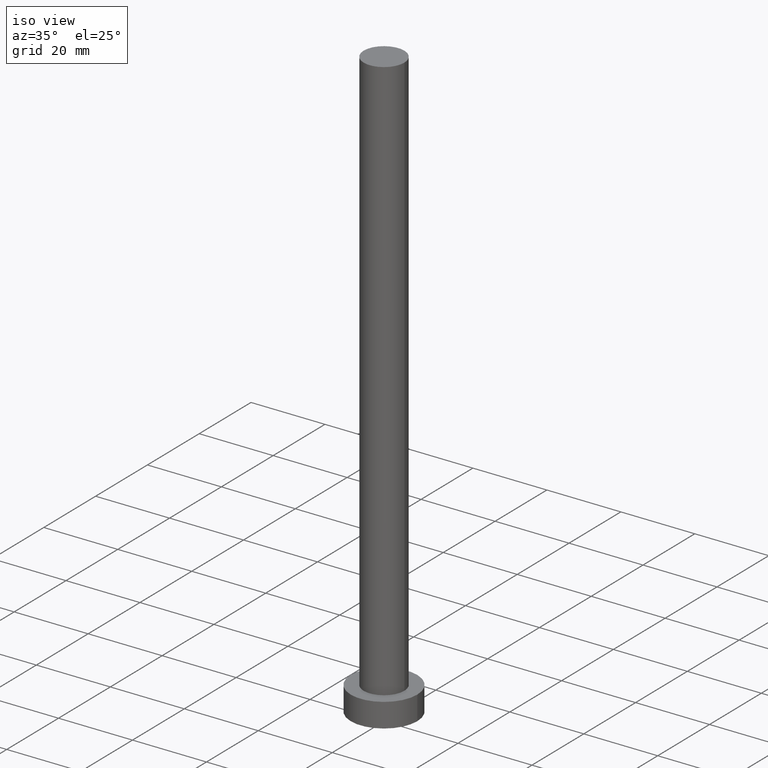
[diagram: clean part render]
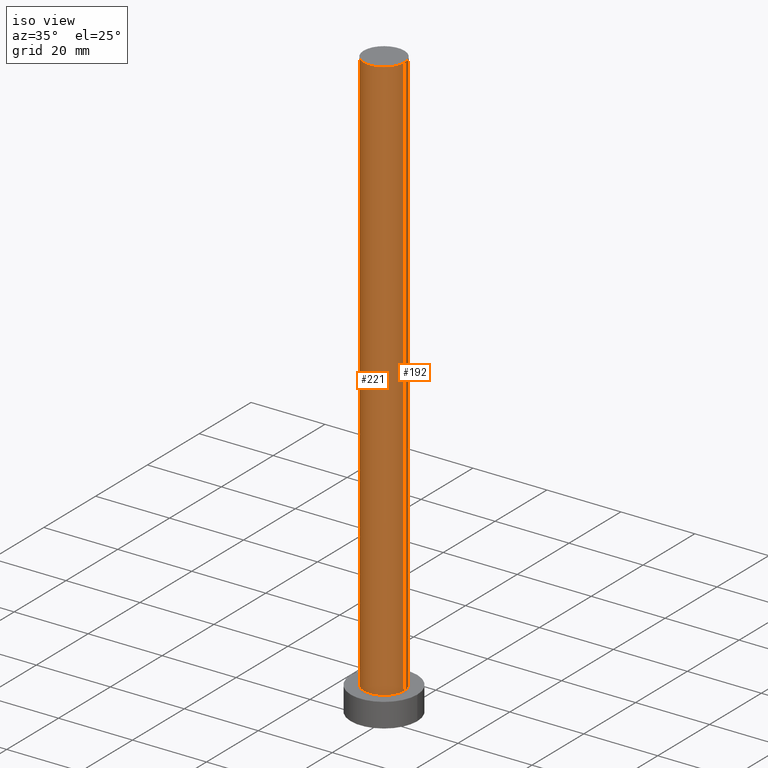
[diagram: same view with one multi-face feature highlighted, each face labeled with its STEP entity id]
A machine part, iso view. The highlighted faces form ONE feature: a constant-radius fillet chain: 2 tangent blend faces with common blend radius 5.5 mm. The faces share edges in the B-rep.
Their STEP definitions:
[1] entity #221 (Cylinder):
#7 = VERTEX_POINT ( 'NONE', #47 ) ;
#20 = CYLINDRICAL_SURFACE ( 'NONE', #157, 5.500000000000000000 ) ;
#37 = DIRECTION ( 'NONE',  ( 1.000000000000000000, 0.000000000000000000, 0.000000000000000000 ) ) ;
#47 = CARTESIAN_POINT ( 'NONE',  ( 5.500000000000000000, 6.735557395310442023E-16, 160.0000000000000000 ) ) ;
#49 = AXIS2_PLACEMENT_3D ( 'NONE', #142, #205, #37 ) ;
#62 = CARTESIAN_POINT ( 'NONE',  ( 0.000000000000000000, 0.000000000000000000, 6.500000000000000000 ) ) ;
#63 = DIRECTION ( 'NONE',  ( -0.000000000000000000, -0.000000000000000000, -1.000000000000000000 ) ) ;
#66 = ORIENTED_EDGE ( 'NONE', *, *, #118, .F. ) ;
#76 = EDGE_CURVE ( 'NONE', #7, #197, #178, .T. ) ;
#77 = CIRCLE ( 'NONE', #49, 5.500000000000000000 ) ;
#78 = CARTESIAN_POINT ( 'NONE',  ( -5.500000000000000000, 0.000000000000000000, 160.0000000000000000 ) ) ;
#81 = EDGE_CURVE ( 'NONE', #122, #197, #99, .T. ) ;
#89 = LINE ( 'NONE', #159, #251 ) ;
#94 = VECTOR ( 'NONE', #229, 1000.000000000000000 ) ;
#99 = CIRCLE ( 'NONE', #183, 5.500000000000000000 ) ;
#115 = ORIENTED_EDGE ( 'NONE', *, *, #81, .T. ) ;
#118 = EDGE_CURVE ( 'NONE', #182, #7, #77, .T. ) ;
#122 = VERTEX_POINT ( 'NONE', #249 ) ;
#128 = CARTESIAN_POINT ( 'NONE',  ( 0.000000000000000000, 0.000000000000000000, 160.0000000000000000 ) ) ;
#142 = CARTESIAN_POINT ( 'NONE',  ( 0.000000000000000000, 0.000000000000000000, 160.0000000000000000 ) ) ;
#143 = FACE_OUTER_BOUND ( 'NONE', #156, .T. ) ;
#144 = ORIENTED_EDGE ( 'NONE', *, *, #239, .T. ) ;
#145 = DIRECTION ( 'NONE',  ( -0.000000000000000000, -0.000000000000000000, -1.000000000000000000 ) ) ;
#156 = EDGE_LOOP ( 'NONE', ( #214, #66, #144, #115 ) ) ;
#157 = AXIS2_PLACEMENT_3D ( 'NONE', #128, #63, #161 ) ;
#159 = CARTESIAN_POINT ( 'NONE',  ( -5.500000000000000000, 0.000000000000000000, 160.0000000000000000 ) ) ;
#161 = DIRECTION ( 'NONE',  ( -1.000000000000000000, 0.000000000000000000, 0.000000000000000000 ) ) ;
#178 = LINE ( 'NONE', #253, #94 ) ;
#182 = VERTEX_POINT ( 'NONE', #78 ) ;
#183 = AXIS2_PLACEMENT_3D ( 'NONE', #62, #193, #207 ) ;
#193 = DIRECTION ( 'NONE',  ( 0.000000000000000000, 0.000000000000000000, 1.000000000000000000 ) ) ;
#197 = VERTEX_POINT ( 'NONE', #208 ) ;
#205 = DIRECTION ( 'NONE',  ( 0.000000000000000000, 0.000000000000000000, 1.000000000000000000 ) ) ;
#207 = DIRECTION ( 'NONE',  ( 1.000000000000000000, 0.000000000000000000, 0.000000000000000000 ) ) ;
#208 = CARTESIAN_POINT ( 'NONE',  ( 5.500000000000000000, 6.735557395310442023E-16, 6.500000000000000000 ) ) ;
#214 = ORIENTED_EDGE ( 'NONE', *, *, #76, .F. ) ;
#221 = ADVANCED_FACE ( 'NONE', ( #143 ), #20, .T. ) ;
#229 = DIRECTION ( 'NONE',  ( -0.000000000000000000, -0.000000000000000000, -1.000000000000000000 ) ) ;
#239 = EDGE_CURVE ( 'NONE', #182, #122, #89, .T. ) ;
#249 = CARTESIAN_POINT ( 'NONE',  ( -5.500000000000000000, 0.000000000000000000, 6.500000000000000000 ) ) ;
#251 = VECTOR ( 'NONE', #145, 1000.000000000000000 ) ;
#253 = CARTESIAN_POINT ( 'NONE',  ( 5.500000000000000000, 6.735557395310442023E-16, 160.0000000000000000 ) ) ;
[2] entity #192 (Cylinder):
#7 = VERTEX_POINT ( 'NONE', #47 ) ;
#13 = AXIS2_PLACEMENT_3D ( 'NONE', #206, #228, #42 ) ;
#23 = FACE_OUTER_BOUND ( 'NONE', #147, .T. ) ;
#24 = EDGE_CURVE ( 'NONE', #7, #182, #132, .T. ) ;
#27 = ORIENTED_EDGE ( 'NONE', *, *, #24, .F. ) ;
#38 = CIRCLE ( 'NONE', #117, 5.500000000000000000 ) ;
#41 = DIRECTION ( 'NONE',  ( 1.000000000000000000, 0.000000000000000000, 0.000000000000000000 ) ) ;
#42 = DIRECTION ( 'NONE',  ( -1.000000000000000000, 0.000000000000000000, 0.000000000000000000 ) ) ;
#47 = CARTESIAN_POINT ( 'NONE',  ( 5.500000000000000000, 6.735557395310442023E-16, 160.0000000000000000 ) ) ;
#73 = DIRECTION ( 'NONE',  ( 0.000000000000000000, 0.000000000000000000, 1.000000000000000000 ) ) ;
#76 = EDGE_CURVE ( 'NONE', #7, #197, #178, .T. ) ;
#78 = CARTESIAN_POINT ( 'NONE',  ( -5.500000000000000000, 0.000000000000000000, 160.0000000000000000 ) ) ;
#82 = DIRECTION ( 'NONE',  ( 0.000000000000000000, 0.000000000000000000, 1.000000000000000000 ) ) ;
#89 = LINE ( 'NONE', #159, #251 ) ;
#94 = VECTOR ( 'NONE', #229, 1000.000000000000000 ) ;
#95 = ORIENTED_EDGE ( 'NONE', *, *, #76, .T. ) ;
#112 = CARTESIAN_POINT ( 'NONE',  ( 0.000000000000000000, 0.000000000000000000, 160.0000000000000000 ) ) ;
#117 = AXIS2_PLACEMENT_3D ( 'NONE', #121, #82, #41 ) ;
#121 = CARTESIAN_POINT ( 'NONE',  ( 0.000000000000000000, 0.000000000000000000, 6.500000000000000000 ) ) ;
#122 = VERTEX_POINT ( 'NONE', #249 ) ;
#129 = ORIENTED_EDGE ( 'NONE', *, *, #239, .F. ) ;
#132 = CIRCLE ( 'NONE', #166, 5.500000000000000000 ) ;
#145 = DIRECTION ( 'NONE',  ( -0.000000000000000000, -0.000000000000000000, -1.000000000000000000 ) ) ;
#147 = EDGE_LOOP ( 'NONE', ( #27, #95, #185, #129 ) ) ;
#159 = CARTESIAN_POINT ( 'NONE',  ( -5.500000000000000000, 0.000000000000000000, 160.0000000000000000 ) ) ;
#165 = EDGE_CURVE ( 'NONE', #197, #122, #38, .T. ) ;
#166 = AXIS2_PLACEMENT_3D ( 'NONE', #112, #73, #187 ) ;
#178 = LINE ( 'NONE', #253, #94 ) ;
#182 = VERTEX_POINT ( 'NONE', #78 ) ;
#185 = ORIENTED_EDGE ( 'NONE', *, *, #165, .T. ) ;
#187 = DIRECTION ( 'NONE',  ( 1.000000000000000000, 0.000000000000000000, 0.000000000000000000 ) ) ;
#192 = ADVANCED_FACE ( 'NONE', ( #23 ), #252, .T. ) ;
#197 = VERTEX_POINT ( 'NONE', #208 ) ;
#206 = CARTESIAN_POINT ( 'NONE',  ( 0.000000000000000000, 0.000000000000000000, 160.0000000000000000 ) ) ;
#208 = CARTESIAN_POINT ( 'NONE',  ( 5.500000000000000000, 6.735557395310442023E-16, 6.500000000000000000 ) ) ;
#228 = DIRECTION ( 'NONE',  ( -0.000000000000000000, -0.000000000000000000, -1.000000000000000000 ) ) ;
#229 = DIRECTION ( 'NONE',  ( -0.000000000000000000, -0.000000000000000000, -1.000000000000000000 ) ) ;
#239 = EDGE_CURVE ( 'NONE', #182, #122, #89, .T. ) ;
#249 = CARTESIAN_POINT ( 'NONE',  ( -5.500000000000000000, 0.000000000000000000, 6.500000000000000000 ) ) ;
#251 = VECTOR ( 'NONE', #145, 1000.000000000000000 ) ;
#252 = CYLINDRICAL_SURFACE ( 'NONE', #13, 5.500000000000000000 ) ;
#253 = CARTESIAN_POINT ( 'NONE',  ( 5.500000000000000000, 6.735557395310442023E-16, 160.0000000000000000 ) ) ;